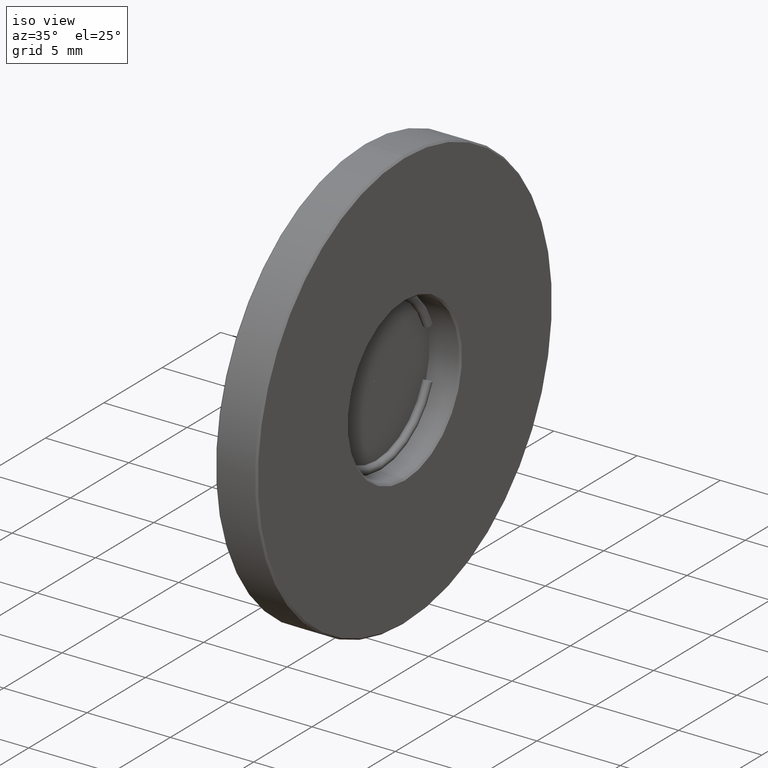
[diagram: clean part render]
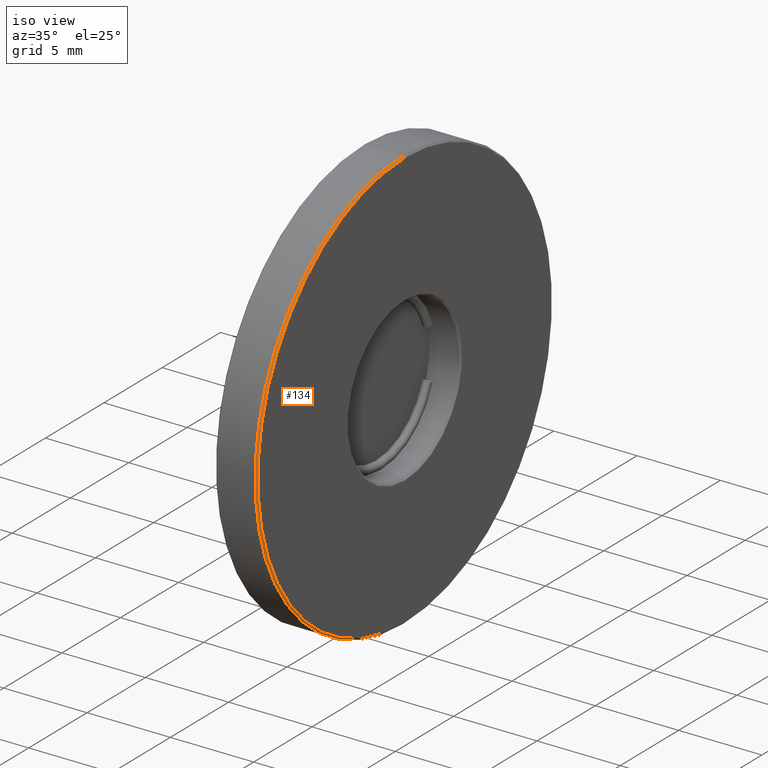
[diagram: same view with one face highlighted and labeled with its STEP entity id]
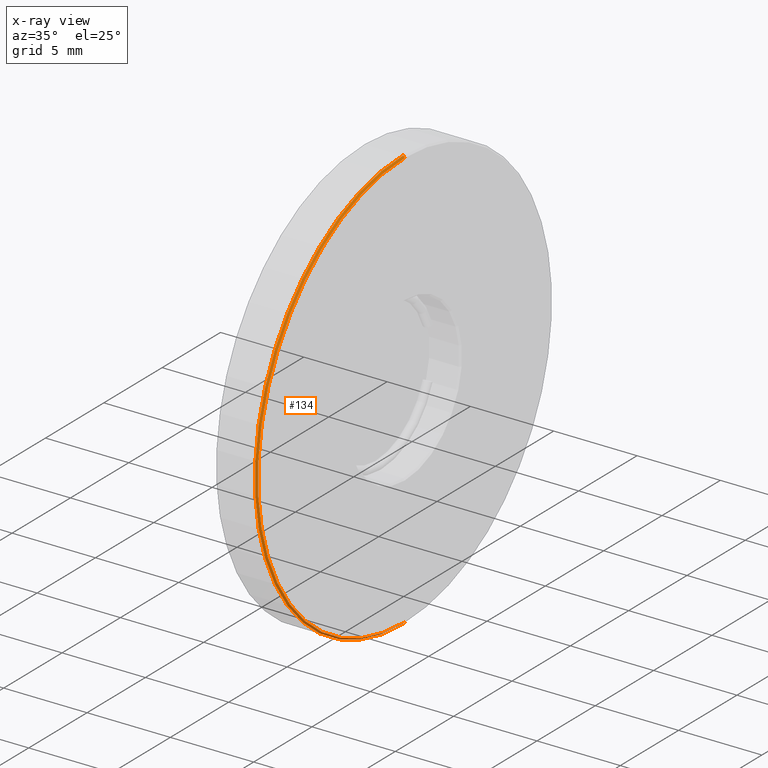
[diagram: x-ray of the same camera — body ghosted, the highlighted face saturated]
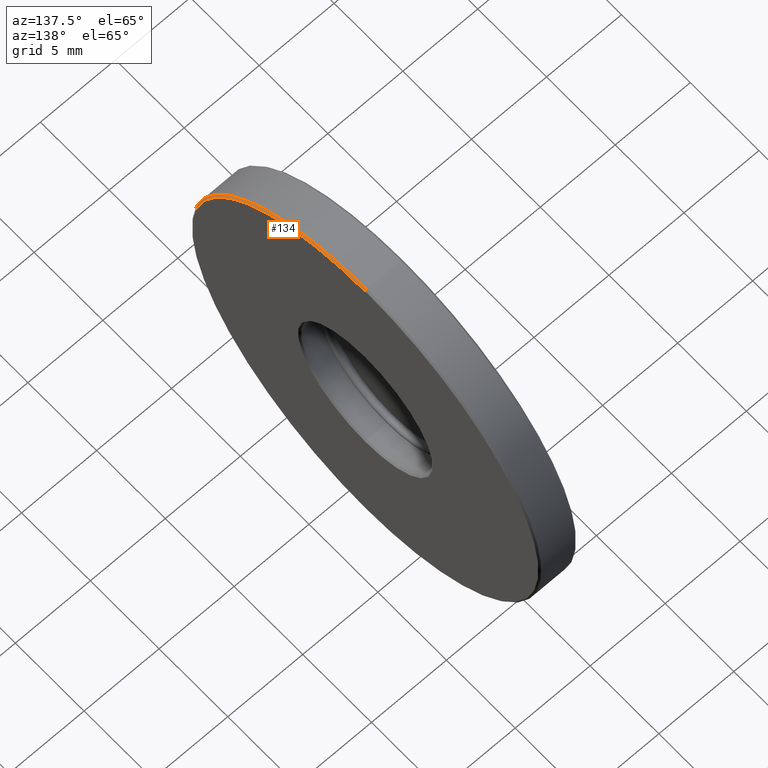
[diagram: same view with one face highlighted and labeled with its STEP entity id]
A machine part, iso view. The second image highlights one B-rep face of the part: STEP entity #134.
The next image is the same camera in x-ray: the body ghosted, the highlighted face saturated — about 0% of this face is hidden behind the body in this view.
A second angle (auxiliary view) of the same face is appended — the face is thin or edge-on in the first view.
In plain terms, the highlighted conical surface has half-angle 45 deg.
Its self-contained STEP definition (entity closure, byte-faithful):
#16 = DIRECTION ( 'NONE',  ( 0.0000000000000000000, 0.0000000000000000000, 1.000000000000000000 ) ) ;
#44 = DIRECTION ( 'NONE',  ( -0.7071067811865414665, 8.659560562355008046E-17, -0.7071067811865536790 ) ) ;
#51 = DIRECTION ( 'NONE',  ( 1.000000000000000000, 0.0000000000000000000, 0.0000000000000000000 ) ) ;
#55 = VERTEX_POINT ( 'NONE', #667 ) ;
#69 = DIRECTION ( 'NONE',  ( -1.000000000000000000, 0.0000000000000000000, 0.0000000000000000000 ) ) ;
#76 = ORIENTED_EDGE ( 'NONE', *, *, #341, .F. ) ;
#86 = ORIENTED_EDGE ( 'NONE', *, *, #152, .F. ) ;
#121 = CARTESIAN_POINT ( 'NONE',  ( -2.434863851253203482, 1.436758841085142402, 12.79999999999999716 ) ) ;
#134 = ADVANCED_FACE ( 'NONE', ( #413 ), #675, .T. ) ;
#152 = EDGE_CURVE ( 'NONE', #55, #511, #594, .T. ) ;
#175 = AXIS2_PLACEMENT_3D ( 'NONE', #266, #69, #16 ) ;
#214 = EDGE_CURVE ( 'NONE', #715, #511, #325, .T. ) ;
#266 = CARTESIAN_POINT ( 'NONE',  ( -2.434863851253203482, 1.436758841085141070, 25.39999999999999858 ) ) ;
#325 = LINE ( 'NONE', #480, #790 ) ;
#341 = EDGE_CURVE ( 'NONE', #508, #55, #766, .T. ) ;
#355 = DIRECTION ( 'NONE',  ( 0.0000000000000000000, 0.0000000000000000000, -1.000000000000000000 ) ) ;
#408 = AXIS2_PLACEMENT_3D ( 'NONE', #733, #51, #602 ) ;
#413 = FACE_OUTER_BOUND ( 'NONE', #736, .T. ) ;
#423 = EDGE_CURVE ( 'NONE', #715, #508, #588, .T. ) ;
#455 = CARTESIAN_POINT ( 'NONE',  ( -2.434863851253203482, 1.436758841085141070, 38.00000000000000711 ) ) ;
#480 = CARTESIAN_POINT ( 'NONE',  ( -2.434863851253203482, 1.436758841085141070, 38.00000000000000000 ) ) ;
#487 = ORIENTED_EDGE ( 'NONE', *, *, #423, .F. ) ;
#508 = VERTEX_POINT ( 'NONE', #121 ) ;
#511 = VERTEX_POINT ( 'NONE', #608 ) ;
#537 = AXIS2_PLACEMENT_3D ( 'NONE', #593, #774, #355 ) ;
#551 = CARTESIAN_POINT ( 'NONE',  ( -2.434863851253203482, 1.436758841085142402, 12.79999999999999716 ) ) ;
#588 = CIRCLE ( 'NONE', #408, 12.60000000000000142 ) ;
#593 = CARTESIAN_POINT ( 'NONE',  ( -2.534863851253199574, 1.436758841085141070, 25.39999999999999858 ) ) ;
#594 = CIRCLE ( 'NONE', #537, 12.69999999999999929 ) ;
#602 = DIRECTION ( 'NONE',  ( 0.0000000000000000000, 0.0000000000000000000, -1.000000000000000000 ) ) ;
#608 = CARTESIAN_POINT ( 'NONE',  ( -2.534863851253199574, 1.436758841085141070, 38.09999999999999432 ) ) ;
#647 = DIRECTION ( 'NONE',  ( -0.7071067811865414665, 0.0000000000000000000, 0.7071067811865536790 ) ) ;
#667 = CARTESIAN_POINT ( 'NONE',  ( -2.534863851253199574, 1.436758841085142402, 12.69999999999999929 ) ) ;
#675 = CONICAL_SURFACE ( 'NONE', #175, 12.59999999999999964, 0.7853981633974569387 ) ;
#715 = VERTEX_POINT ( 'NONE', #455 ) ;
#733 = CARTESIAN_POINT ( 'NONE',  ( -2.434863851253203482, 1.436758841085141070, 25.39999999999999858 ) ) ;
#736 = EDGE_LOOP ( 'NONE', ( #76, #487, #751, #86 ) ) ;
#751 = ORIENTED_EDGE ( 'NONE', *, *, #214, .T. ) ;
#766 = LINE ( 'NONE', #551, #769 ) ;
#769 = VECTOR ( 'NONE', #44, 1000.000000000000000 ) ;
#774 = DIRECTION ( 'NONE',  ( -1.000000000000000000, 0.0000000000000000000, 0.0000000000000000000 ) ) ;
#790 = VECTOR ( 'NONE', #647, 1000.000000000000000 ) ;